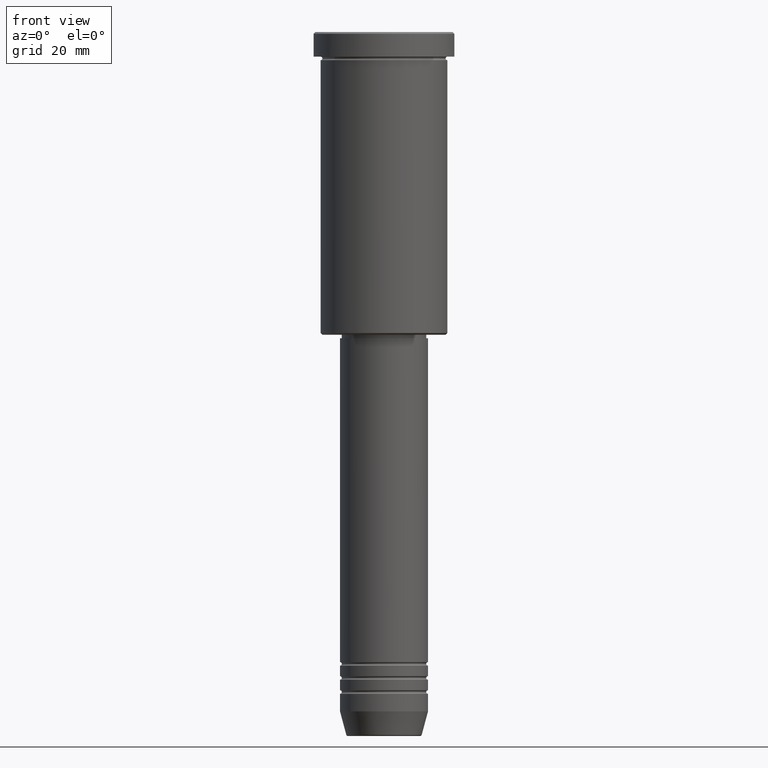
[diagram: clean part render]
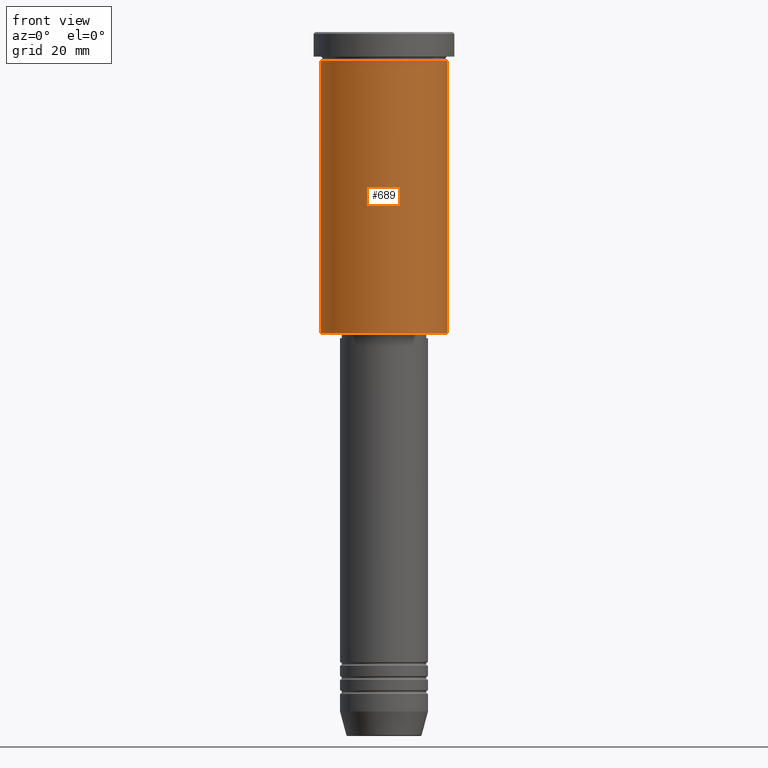
[diagram: same view with one face highlighted and labeled with its STEP entity id]
A machine part, front view. The second image highlights one B-rep face of the part: STEP entity #689.
In plain terms, the highlighted cylindrical surface (partial cylindrical patch) has radius 18 mm, axis along (-0, -0, 1).
Its self-contained STEP definition (entity closure, byte-faithful):
#5 = CIRCLE ( 'NONE', #888, 18.00000000000000000 ) ;
#30 = CARTESIAN_POINT ( 'NONE',  ( 18.00000000000000000, 0.000000000000000000, -7.999999999999996447 ) ) ;
#38 = ORIENTED_EDGE ( 'NONE', *, *, #39, .F. ) ;
#39 = EDGE_CURVE ( 'NONE', #934, #1140, #884, .T. ) ;
#60 = EDGE_CURVE ( 'NONE', #797, #1140, #640, .T. ) ;
#152 = CARTESIAN_POINT ( 'NONE',  ( 0.000000000000000000, 0.000000000000000000, -85.49999999999998579 ) ) ;
#160 = ORIENTED_EDGE ( 'NONE', *, *, #649, .F. ) ;
#181 = DIRECTION ( 'NONE',  ( -0.000000000000000000, -0.000000000000000000, 1.000000000000000000 ) ) ;
#192 = FACE_OUTER_BOUND ( 'NONE', #312, .T. ) ;
#229 = DIRECTION ( 'NONE',  ( -0.000000000000000000, -0.000000000000000000, 1.000000000000000000 ) ) ;
#301 = LINE ( 'NONE', #942, #1062 ) ;
#312 = EDGE_LOOP ( 'NONE', ( #160, #605, #1085, #38 ) ) ;
#366 = EDGE_CURVE ( 'NONE', #774, #797, #5, .T. ) ;
#440 = DIRECTION ( 'NONE',  ( 1.000000000000000000, 0.000000000000000000, 0.000000000000000000 ) ) ;
#457 = CYLINDRICAL_SURFACE ( 'NONE', #906, 18.00000000000000000 ) ;
#523 = CARTESIAN_POINT ( 'NONE',  ( 0.000000000000000000, 0.000000000000000000, -7.999999999999996447 ) ) ;
#555 = CARTESIAN_POINT ( 'NONE',  ( 0.000000000000000000, 0.000000000000000000, 0.000000000000000000 ) ) ;
#588 = CARTESIAN_POINT ( 'NONE',  ( -18.00000000000000000, 2.204364238465235428E-15, -85.49999999999998579 ) ) ;
#595 = CARTESIAN_POINT ( 'NONE',  ( 18.00000000000000000, 0.000000000000000000, -85.49999999999998579 ) ) ;
#605 = ORIENTED_EDGE ( 'NONE', *, *, #366, .T. ) ;
#628 = CARTESIAN_POINT ( 'NONE',  ( -18.00000000000000000, 2.204364238465235428E-15, -7.999999999999996447 ) ) ;
#640 = LINE ( 'NONE', #812, #663 ) ;
#649 = EDGE_CURVE ( 'NONE', #774, #934, #301, .T. ) ;
#662 = DIRECTION ( 'NONE',  ( -0.000000000000000000, -0.000000000000000000, 1.000000000000000000 ) ) ;
#663 = VECTOR ( 'NONE', #1006, 1000.000000000000000 ) ;
#689 = ADVANCED_FACE ( 'NONE', ( #192 ), #457, .T. ) ;
#774 = VERTEX_POINT ( 'NONE', #588 ) ;
#797 = VERTEX_POINT ( 'NONE', #595 ) ;
#812 = CARTESIAN_POINT ( 'NONE',  ( 18.00000000000000000, 0.000000000000000000, 0.000000000000000000 ) ) ;
#834 = DIRECTION ( 'NONE',  ( -0.000000000000000000, -0.000000000000000000, 1.000000000000000000 ) ) ;
#884 = CIRCLE ( 'NONE', #1038, 18.00000000000000000 ) ;
#888 = AXIS2_PLACEMENT_3D ( 'NONE', #152, #229, #1064 ) ;
#906 = AXIS2_PLACEMENT_3D ( 'NONE', #555, #834, #1124 ) ;
#934 = VERTEX_POINT ( 'NONE', #628 ) ;
#942 = CARTESIAN_POINT ( 'NONE',  ( -18.00000000000000000, 2.204364238465235428E-15, 0.000000000000000000 ) ) ;
#1006 = DIRECTION ( 'NONE',  ( -0.000000000000000000, -0.000000000000000000, 1.000000000000000000 ) ) ;
#1038 = AXIS2_PLACEMENT_3D ( 'NONE', #523, #181, #440 ) ;
#1062 = VECTOR ( 'NONE', #662, 1000.000000000000000 ) ;
#1064 = DIRECTION ( 'NONE',  ( -1.000000000000000000, 0.000000000000000000, 0.000000000000000000 ) ) ;
#1085 = ORIENTED_EDGE ( 'NONE', *, *, #60, .T. ) ;
#1124 = DIRECTION ( 'NONE',  ( 1.000000000000000000, 0.000000000000000000, 0.000000000000000000 ) ) ;
#1140 = VERTEX_POINT ( 'NONE', #30 ) ;